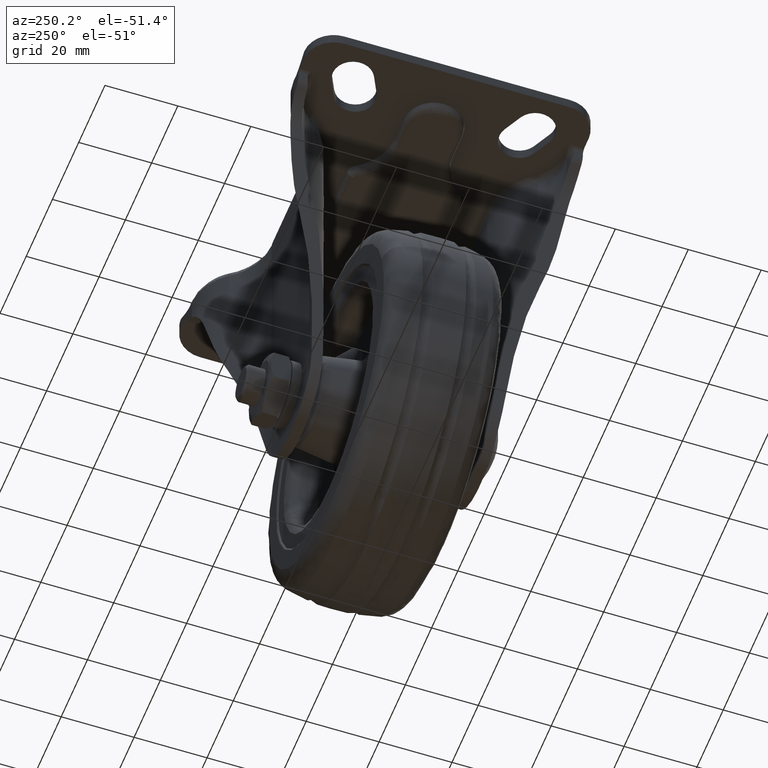
[diagram: clean part render]
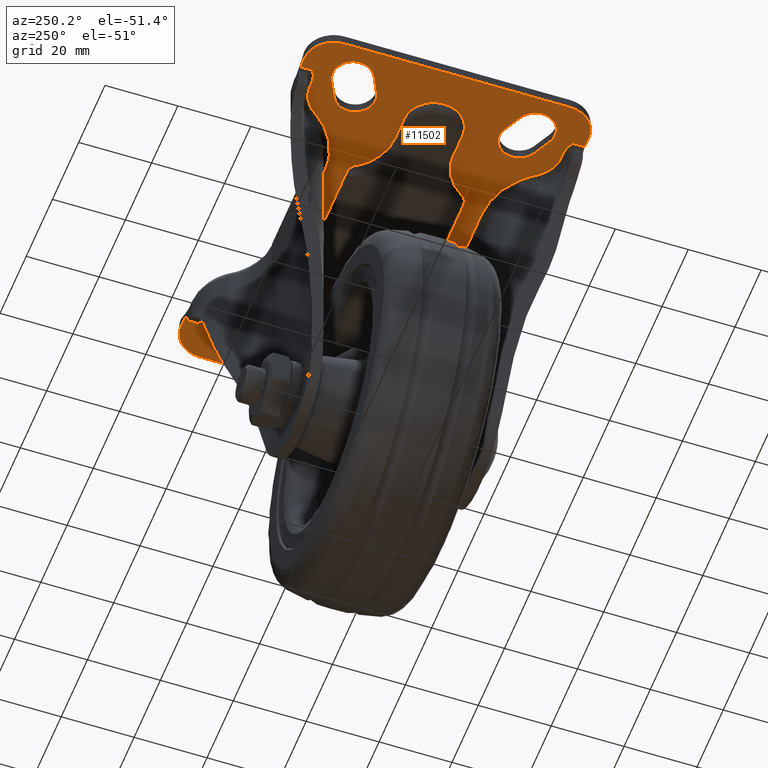
[diagram: same view with one face highlighted and labeled with its STEP entity id]
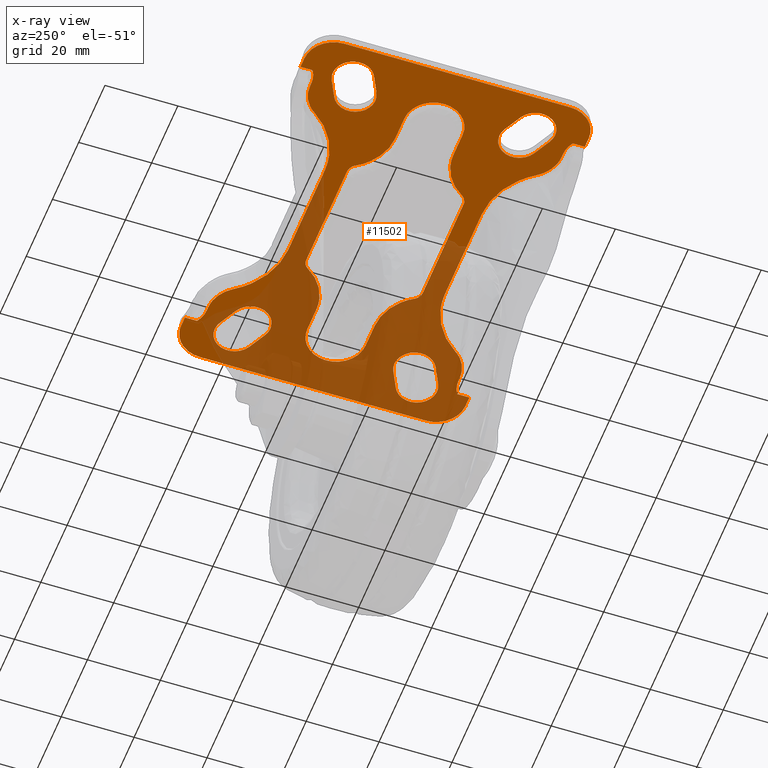
[diagram: x-ray of the same camera — body ghosted, the highlighted face saturated]
A machine part, auxiliary view. The second image highlights one B-rep face of the part: STEP entity #11502.
The next image is the same camera in x-ray: the body ghosted, the highlighted face saturated — about 46% of this face is hidden behind the body in this view.
In plain terms, the highlighted face is a freeform B-spline surface patch.
Its self-contained STEP definition (entity closure, byte-faithful):
#7823=CARTESIAN_POINT('',(-44.0,-35.685922774422302,79.000007999999895));
#7824=VERTEX_POINT('',#7823);
#7864=CARTESIAN_POINT('',(-44.0,-39.0,79.000007999999895));
#7865=VERTEX_POINT('',#7864);
#7879=CARTESIAN_POINT('',(-44.0,-35.685922774422302,79.000007999999895));
#7880=CARTESIAN_POINT('',(-44.0,-39.0,79.000007999999895));
#7881=QUASI_UNIFORM_CURVE('',1,(#7879,#7880),.UNSPECIFIED.,.F.,.U.);
#7882=EDGE_CURVE('',#7824,#7865,#7881,.T.);
#7904=CARTESIAN_POINT('',(-39.631189465921103,-34.499999999999403,79.000007999999895));
#7905=VERTEX_POINT('',#7904);
#7938=CARTESIAN_POINT('',(-39.631189465921103,-34.499999999999389,79.000007999999895));
#7939=CARTESIAN_POINT('',(-42.003095846402069,-34.402227675689481,79.000007999999895));
#7940=CARTESIAN_POINT('',(-43.999999999999993,-35.685922774422323,79.000007999999895));
#7948=(BOUNDED_CURVE()B_SPLINE_CURVE(2,(#7938,#7939,#7940),.UNSPECIFIED.,.F.,.U.)CURVE()GEOMETRIC_REPRESENTATION_ITEM()QUASI_UNIFORM_CURVE()RATIONAL_B_SPLINE_CURVE((1.0,0.953467092188285,1.0))REPRESENTATION_ITEM(''));
#7949=EDGE_CURVE('',#7905,#7824,#7948,.T.);
#7968=CARTESIAN_POINT('',(-38.718417455751897,-34.499999999999403,79.000007999999895));
#7969=VERTEX_POINT('',#7968);
#7985=CARTESIAN_POINT('',(-38.718417455751897,-34.499999999999403,79.000007999999895));
#7986=CARTESIAN_POINT('',(-39.631189465921103,-34.499999999999403,79.000007999999895));
#7987=QUASI_UNIFORM_CURVE('',1,(#7985,#7986),.UNSPECIFIED.,.F.,.U.);
#7988=EDGE_CURVE('',#7969,#7905,#7987,.T.);
#8010=CARTESIAN_POINT('',(-30.890916410544801,-30.383333403596801,79.000007999999895));
#8011=VERTEX_POINT('',#8010);
#8027=CARTESIAN_POINT('',(-30.890916410544801,-30.383333403596801,79.000007999999895));
#8028=CARTESIAN_POINT('',(-33.722140164270542,-34.500001817461929,79.000007999999895));
#8029=CARTESIAN_POINT('',(-38.718417455751897,-34.499999999999382,79.000007999999895));
#8037=(BOUNDED_CURVE()B_SPLINE_CURVE(2,(#8027,#8028,#8029),.UNSPECIFIED.,.F.,.U.)CURVE()GEOMETRIC_REPRESENTATION_ITEM()QUASI_UNIFORM_CURVE()RATIONAL_B_SPLINE_CURVE((1.0,0.885061123203106,1.0))REPRESENTATION_ITEM(''));
#8038=EDGE_CURVE('',#8011,#7969,#8037,.T.);
#8060=CARTESIAN_POINT('',(-13.999993559735101,-21.500000000000000,79.000007999999895));
#8061=VERTEX_POINT('',#8060);
#8077=CARTESIAN_POINT('',(-13.999993559735101,-21.500000000000000,79.000007999999895));
#8078=CARTESIAN_POINT('',(-24.781433700860166,-21.499996612911719,79.000007999999895));
#8079=CARTESIAN_POINT('',(-30.890916410544769,-30.383333403596819,79.000007999999895));
#8087=(BOUNDED_CURVE()B_SPLINE_CURVE(2,(#8077,#8078,#8079),.UNSPECIFIED.,.F.,.U.)CURVE()GEOMETRIC_REPRESENTATION_ITEM()QUASI_UNIFORM_CURVE()RATIONAL_B_SPLINE_CURVE((1.0,0.885061129072033,1.0))REPRESENTATION_ITEM(''));
#8088=EDGE_CURVE('',#8061,#8011,#8087,.T.);
#8107=CARTESIAN_POINT('',(13.999997921514900,-21.500000000000000,79.000007999999895));
#8108=VERTEX_POINT('',#8107);
#8124=CARTESIAN_POINT('',(13.999997921514900,-21.500000000000000,79.000007999999895));
#8125=CARTESIAN_POINT('',(-13.999993559735101,-21.500000000000000,79.000007999999895));
#8126=QUASI_UNIFORM_CURVE('',1,(#8124,#8125),.UNSPECIFIED.,.F.,.U.);
#8127=EDGE_CURVE('',#8108,#8061,#8126,.T.);
#8149=CARTESIAN_POINT('',(30.890915999197752,-30.383333079741298,79.000007999999895));
#8150=VERTEX_POINT('',#8149);
#8166=CARTESIAN_POINT('',(30.890915999197752,-30.383333079741298,79.000007999999895));
#8167=CARTESIAN_POINT('',(24.781434959416973,-21.499998906875408,79.000007999999880));
#8168=CARTESIAN_POINT('',(13.999997921514900,-21.500000000000110,79.000007999999895));
#8176=(BOUNDED_CURVE()B_SPLINE_CURVE(2,(#8166,#8167,#8168),.UNSPECIFIED.,.F.,.U.)CURVE()GEOMETRIC_REPRESENTATION_ITEM()QUASI_UNIFORM_CURVE()RATIONAL_B_SPLINE_CURVE((1.0,0.885061184267306,1.0))REPRESENTATION_ITEM(''));
#8177=EDGE_CURVE('',#8150,#8108,#8176,.T.);
#8199=CARTESIAN_POINT('',(38.718417455751897,-34.499999999999353,79.000007999999895));
#8200=VERTEX_POINT('',#8199);
#8214=CARTESIAN_POINT('',(38.718417455751911,-34.499999999999382,79.000007999999895));
#8215=CARTESIAN_POINT('',(33.722139845162062,-34.500001817462099,79.000007999999880));
#8216=CARTESIAN_POINT('',(30.890915999197759,-30.383333079741298,79.000007999999895));
#8224=(BOUNDED_CURVE()B_SPLINE_CURVE(2,(#8214,#8215,#8216),.UNSPECIFIED.,.F.,.U.)CURVE()GEOMETRIC_REPRESENTATION_ITEM()QUASI_UNIFORM_CURVE()RATIONAL_B_SPLINE_CURVE((1.0,0.885061110955324,1.0))REPRESENTATION_ITEM(''));
#8225=EDGE_CURVE('',#8200,#8150,#8224,.T.);
#8244=CARTESIAN_POINT('',(39.631189465921047,-34.499999999999403,79.000007999999895));
#8245=VERTEX_POINT('',#8244);
#8278=CARTESIAN_POINT('',(39.631189465921047,-34.499999999999403,79.000007999999895));
#8279=CARTESIAN_POINT('',(38.718417455751897,-34.499999999999353,79.000007999999895));
#8280=QUASI_UNIFORM_CURVE('',1,(#8278,#8279),.UNSPECIFIED.,.F.,.U.);
#8281=EDGE_CURVE('',#8245,#8200,#8280,.T.);
#8303=CARTESIAN_POINT('',(44.0,-35.685922774422252,79.000007999999895));
#8304=VERTEX_POINT('',#8303);
#8339=CARTESIAN_POINT('',(43.999999999999972,-35.685922774422302,79.000007999999895));
#8340=CARTESIAN_POINT('',(42.003095846402033,-34.402227675689467,79.000007999999895));
#8341=CARTESIAN_POINT('',(39.631189465921047,-34.499999999999389,79.000007999999895));
#8349=(BOUNDED_CURVE()B_SPLINE_CURVE(2,(#8339,#8340,#8341),.UNSPECIFIED.,.F.,.U.)CURVE()GEOMETRIC_REPRESENTATION_ITEM()QUASI_UNIFORM_CURVE()RATIONAL_B_SPLINE_CURVE((1.0,0.953467092188285,1.0))REPRESENTATION_ITEM(''));
#8350=EDGE_CURVE('',#8304,#8245,#8349,.T.);
#8371=CARTESIAN_POINT('',(44.0,-39.0,79.000007999999895));
#8372=VERTEX_POINT('',#8371);
#8392=CARTESIAN_POINT('',(44.0,-39.0,79.000007999999895));
#8393=CARTESIAN_POINT('',(44.0,-35.685922774422252,79.000007999999895));
#8394=QUASI_UNIFORM_CURVE('',1,(#8392,#8393),.UNSPECIFIED.,.F.,.U.);
#8395=EDGE_CURVE('',#8372,#8304,#8394,.T.);
#8417=CARTESIAN_POINT('',(30.890919792992101,30.383338321759300,79.000007999999895));
#8418=VERTEX_POINT('',#8417);
#8449=CARTESIAN_POINT('',(38.718417455751997,34.499999999999403,79.000007999999895));
#8450=VERTEX_POINT('',#8449);
#8464=CARTESIAN_POINT('',(30.890919792992101,30.383338321759300,79.000007999999895));
#8465=CARTESIAN_POINT('',(33.722143974287299,34.500001817460642,79.000007999999895));
#8466=CARTESIAN_POINT('',(38.718417455751997,34.499999999999382,79.000007999999895));
#8474=(BOUNDED_CURVE()B_SPLINE_CURVE(2,(#8464,#8465,#8466),.UNSPECIFIED.,.F.,.U.)CURVE()GEOMETRIC_REPRESENTATION_ITEM()QUASI_UNIFORM_CURVE()RATIONAL_B_SPLINE_CURVE((1.0,0.885061269436290,1.0))REPRESENTATION_ITEM(''));
#8475=EDGE_CURVE('',#8418,#8450,#8474,.T.);
#8497=CARTESIAN_POINT('',(13.999997757423980,21.500000000000000,79.000007999999895));
#8498=VERTEX_POINT('',#8497);
#8528=CARTESIAN_POINT('',(13.999997757423991,21.500000000000121,79.000007999999895));
#8529=CARTESIAN_POINT('',(24.781439029190498,21.499998820575644,79.000007999999895));
#8530=CARTESIAN_POINT('',(30.890919792992129,30.383338321759279,79.000007999999895));
#8538=(BOUNDED_CURVE()B_SPLINE_CURVE(2,(#8528,#8529,#8530),.UNSPECIFIED.,.F.,.U.)CURVE()GEOMETRIC_REPRESENTATION_ITEM()QUASI_UNIFORM_CURVE()RATIONAL_B_SPLINE_CURVE((1.0,0.885061108961963,1.0))REPRESENTATION_ITEM(''));
#8539=EDGE_CURVE('',#8498,#8418,#8538,.T.);
#8558=CARTESIAN_POINT('',(-14.0,21.500000000000000,79.000007999999895));
#8559=VERTEX_POINT('',#8558);
#8581=CARTESIAN_POINT('',(-14.0,21.500000000000000,79.000007999999895));
#8582=CARTESIAN_POINT('',(13.999997757423980,21.500000000000000,79.000007999999895));
#8583=QUASI_UNIFORM_CURVE('',1,(#8581,#8582),.UNSPECIFIED.,.F.,.U.);
#8584=EDGE_CURVE('',#8559,#8498,#8583,.T.);
#8606=CARTESIAN_POINT('',(-30.890919648683049,30.383338386178199,79.000007999999895));
#8607=VERTEX_POINT('',#8606);
#8637=CARTESIAN_POINT('',(-30.890919648683049,30.383338386178199,79.000007999999895));
#8638=CARTESIAN_POINT('',(-24.781439822017358,21.500000000000004,79.000007999999895));
#8639=CARTESIAN_POINT('',(-14.0,21.500000000000000,79.000007999999895));
#8647=(BOUNDED_CURVE()B_SPLINE_CURVE(2,(#8637,#8638,#8639),.UNSPECIFIED.,.F.,.U.)CURVE()GEOMETRIC_REPRESENTATION_ITEM()QUASI_UNIFORM_CURVE()RATIONAL_B_SPLINE_CURVE((1.0,0.885061134747831,1.0))REPRESENTATION_ITEM(''));
#8648=EDGE_CURVE('',#8607,#8559,#8647,.T.);
#8670=CARTESIAN_POINT('',(-38.718411015487099,34.499999999999403,79.000007999999895));
#8671=VERTEX_POINT('',#8670);
#8699=CARTESIAN_POINT('',(-38.718411015487099,34.499999999999531,79.000007999999895));
#8700=CARTESIAN_POINT('',(-33.722141626510869,34.499998430375229,79.000007999999895));
#8701=CARTESIAN_POINT('',(-30.890919648683049,30.383338386178199,79.000007999999895));
#8709=(BOUNDED_CURVE()B_SPLINE_CURVE(2,(#8699,#8700,#8701),.UNSPECIFIED.,.F.,.U.)CURVE()GEOMETRIC_REPRESENTATION_ITEM()QUASI_UNIFORM_CURVE()RATIONAL_B_SPLINE_CURVE((1.0,0.885061426511052,1.0))REPRESENTATION_ITEM(''));
#8710=EDGE_CURVE('',#8671,#8607,#8709,.T.);
#8729=CARTESIAN_POINT('',(-39.631189465921047,34.499999999999403,79.000007999999895));
#8730=VERTEX_POINT('',#8729);
#8763=CARTESIAN_POINT('',(-39.631189465921047,34.499999999999403,79.000007999999895));
#8764=CARTESIAN_POINT('',(-38.718411015487099,34.499999999999403,79.000007999999895));
#8765=QUASI_UNIFORM_CURVE('',1,(#8763,#8764),.UNSPECIFIED.,.F.,.U.);
#8766=EDGE_CURVE('',#8730,#8671,#8765,.T.);
#8788=CARTESIAN_POINT('',(-44.0,35.685922774422302,79.000007999999895));
#8789=VERTEX_POINT('',#8788);
#8824=CARTESIAN_POINT('',(-43.999999999999993,35.685922774422323,79.000007999999895));
#8825=CARTESIAN_POINT('',(-42.003095846402047,34.402227675689467,79.000007999999895));
#8826=CARTESIAN_POINT('',(-39.631189465921047,34.499999999999389,79.000007999999895));
#8834=(BOUNDED_CURVE()B_SPLINE_CURVE(2,(#8824,#8825,#8826),.UNSPECIFIED.,.F.,.U.)CURVE()GEOMETRIC_REPRESENTATION_ITEM()QUASI_UNIFORM_CURVE()RATIONAL_B_SPLINE_CURVE((1.0,0.953467092188284,1.0))REPRESENTATION_ITEM(''));
#8835=EDGE_CURVE('',#8789,#8730,#8834,.T.);
#8856=CARTESIAN_POINT('',(-44.0,39.0,79.000007999999895));
#8857=VERTEX_POINT('',#8856);
#8877=CARTESIAN_POINT('',(-44.0,39.0,79.000007999999895));
#8878=CARTESIAN_POINT('',(-44.0,35.685922774422302,79.000007999999895));
#8879=QUASI_UNIFORM_CURVE('',1,(#8877,#8878),.UNSPECIFIED.,.F.,.U.);
#8880=EDGE_CURVE('',#8857,#8789,#8879,.T.);
#8918=CARTESIAN_POINT('',(-15.577794057522199,16.0,79.000007999999809));
#8919=VERTEX_POINT('',#8918);
#8934=CARTESIAN_POINT('',(-18.122891203023201,14.588233395114500,79.000007999999809));
#8935=VERTEX_POINT('',#8934);
#8949=CARTESIAN_POINT('',(-15.577794057522199,15.999999999999851,79.000007999999809));
#8950=CARTESIAN_POINT('',(-17.241896726020453,16.000000522793133,79.000007999999809));
#8951=CARTESIAN_POINT('',(-18.122891203023190,14.588233395114500,79.000007999999809));
#8959=(BOUNDED_CURVE()B_SPLINE_CURVE(2,(#8949,#8950,#8951),.UNSPECIFIED.,.F.,.U.)CURVE()GEOMETRIC_REPRESENTATION_ITEM()QUASI_UNIFORM_CURVE()RATIONAL_B_SPLINE_CURVE((1.0,0.874474375034213,1.0))REPRESENTATION_ITEM(''));
#8960=EDGE_CURVE('',#8919,#8935,#8959,.T.);
#8982=CARTESIAN_POINT('',(-29.999995601770301,8.000000000000799,79.000007999999809));
#8983=VERTEX_POINT('',#8982);
#8997=CARTESIAN_POINT('',(-29.999995601770308,8.000000000000689,79.000007999999809));
#8998=CARTESIAN_POINT('',(-22.234197229226865,8.000002439698189,79.000007999999809));
#8999=CARTESIAN_POINT('',(-18.122891129715981,14.588233349368011,79.000007999999809));
#9007=(BOUNDED_CURVE()B_SPLINE_CURVE(2,(#8997,#8998,#8999),.UNSPECIFIED.,.F.,.U.)CURVE()GEOMETRIC_REPRESENTATION_ITEM()QUASI_UNIFORM_CURVE()RATIONAL_B_SPLINE_CURVE((1.0,0.874474748102609,1.0))REPRESENTATION_ITEM(''));
#9008=EDGE_CURVE('',#8983,#8935,#9007,.T.);
#9029=CARTESIAN_POINT('',(15.577797942477901,16.0,79.000007999999809));
#9030=VERTEX_POINT('',#9029);
#9046=CARTESIAN_POINT('',(15.577797942477901,16.0,79.000007999999809));
#9047=CARTESIAN_POINT('',(-15.577794057522199,16.0,79.000007999999809));
#9048=QUASI_UNIFORM_CURVE('',1,(#9046,#9047),.UNSPECIFIED.,.F.,.U.);
#9049=EDGE_CURVE('',#9030,#8919,#9048,.T.);
#9068=CARTESIAN_POINT('',(-37.0,8.0,79.000007999999809));
#9069=VERTEX_POINT('',#9068);
#9083=CARTESIAN_POINT('',(-29.999995601770301,8.000000000000799,79.000007999999809));
#9084=CARTESIAN_POINT('',(-37.0,8.0,79.000007999999809));
#9085=QUASI_UNIFORM_CURVE('',1,(#9083,#9084),.UNSPECIFIED.,.F.,.U.);
#9086=EDGE_CURVE('',#8983,#9069,#9085,.T.);
#9126=CARTESIAN_POINT('',(18.122888007960299,14.588238351879660,79.000007999999809));
#9127=VERTEX_POINT('',#9126);
#9143=CARTESIAN_POINT('',(18.122888007960299,14.588238351879660,79.000007999999809));
#9144=CARTESIAN_POINT('',(17.241894074320260,15.999999005200424,79.000007999999809));
#9145=CARTESIAN_POINT('',(15.577797942477901,16.0,79.000007999999809));
#9153=(BOUNDED_CURVE()B_SPLINE_CURVE(2,(#9143,#9144,#9145),.UNSPECIFIED.,.F.,.U.)CURVE()GEOMETRIC_REPRESENTATION_ITEM()QUASI_UNIFORM_CURVE()RATIONAL_B_SPLINE_CURVE((1.0,0.874475089740512,1.0))REPRESENTATION_ITEM(''));
#9154=EDGE_CURVE('',#9127,#9030,#9153,.T.);
#9182=CARTESIAN_POINT('',(-36.999999860373698,-8.0,79.000007999999809));
#9183=VERTEX_POINT('',#9182);
#9197=CARTESIAN_POINT('',(-37.0,8.0,79.000007999999809));
#9198=CARTESIAN_POINT('',(-37.654509690654770,8.000179092575106,79.000007999999880));
#9199=CARTESIAN_POINT('',(-38.636150440743883,7.878809001673047,79.000007999999724));
#9200=CARTESIAN_POINT('',(-40.011399989283341,7.443099023216033,79.000007999999923));
#9201=CARTESIAN_POINT('',(-41.310282004363813,6.809347256539757,79.000007999999795));
#9202=CARTESIAN_POINT('',(-42.661970092505463,5.754496766161606,79.000007999999269));
#9203=CARTESIAN_POINT('',(-43.731719170311919,4.417729791744385,79.000008000000847));
#9204=CARTESIAN_POINT('',(-44.382073404527127,3.164002055695347,79.000007999999028));
#9205=CARTESIAN_POINT('',(-44.853785495987282,1.765430061869965,79.000008000000037));
#9206=CARTESIAN_POINT('',(-45.089088730337210,0.033820359845522,79.000008000000108));
#9207=CARTESIAN_POINT('',(-44.866724909304708,-1.768855590240380,79.000007999999838));
#9208=CARTESIAN_POINT('',(-44.312145765353698,-3.348642487646395,79.000007999999170));
#9209=CARTESIAN_POINT('',(-43.485700537939252,-4.807913849921258,79.000008000002353));
#9210=CARTESIAN_POINT('',(-42.317051870380190,-6.066086490980329,79.000008000000022));
#9211=CARTESIAN_POINT('',(-41.070932865176196,-6.920648508330315,79.000007999999525));
#9212=CARTESIAN_POINT('',(-39.951291443787881,-7.467162863314860,79.000007999999767));
#9213=CARTESIAN_POINT('',(-38.636192272855943,-7.883813158852026,79.000008000000292));
#9214=CARTESIAN_POINT('',(-37.589041295374741,-8.000103069979890,79.000007999998303));
#9215=CARTESIAN_POINT('',(-36.999999860373698,-8.0,79.000007999999809));
#9216=B_SPLINE_CURVE_WITH_KNOTS('',3,(#9197,#9198,#9199,#9200,#9201,#9202,#9203,#9204,#9205,#9206,#9207,#9208,#9209,#9210,#9211,#9212,#9213,#9214,#9215),.UNSPECIFIED.,.F.,.U.,(4,1,1,1,1,1,1,1,1,1,1,1,1,1,1,1,4),(0.000000335287336,1.963472023958271,2.945239918960709,4.319721238004622,6.283228272231423,8.050444931841362,9.424833791060138,10.504764406756211,12.468273056361150,14.628135010395360,15.904471424608341,17.475158574776358,19.635052643257950,21.009534171183802,21.991306012470702,23.365782629949440,25.132899065749609),.UNSPECIFIED.);
#9217=EDGE_CURVE('',#9069,#9183,#9216,.T.);
#9241=CARTESIAN_POINT('',(30.0,8.0,79.000007999999809));
#9242=VERTEX_POINT('',#9241);
#9258=CARTESIAN_POINT('',(18.122888007960320,14.588238351879671,79.000007999999809));
#9259=CARTESIAN_POINT('',(22.234194896189095,7.999999999999998,79.000007999999809));
#9260=CARTESIAN_POINT('',(30.0,7.999999999999998,79.000007999999809));
#9268=(BOUNDED_CURVE()B_SPLINE_CURVE(2,(#9258,#9259,#9260),.UNSPECIFIED.,.F.,.U.)CURVE()GEOMETRIC_REPRESENTATION_ITEM()QUASI_UNIFORM_CURVE()RATIONAL_B_SPLINE_CURVE((1.0,0.874474569754407,1.0))REPRESENTATION_ITEM(''));
#9269=EDGE_CURVE('',#9127,#9242,#9268,.T.);
#9288=CARTESIAN_POINT('',(-30.0,-8.0,79.000007999999809));
#9289=VERTEX_POINT('',#9288);
#9303=CARTESIAN_POINT('',(-36.999999860373698,-8.0,79.000007999999809));
#9304=CARTESIAN_POINT('',(-30.0,-8.0,79.000007999999809));
#9305=QUASI_UNIFORM_CURVE('',1,(#9303,#9304),.UNSPECIFIED.,.F.,.U.);
#9306=EDGE_CURVE('',#9183,#9289,#9305,.T.);
#9327=CARTESIAN_POINT('',(36.999999581120854,8.0,79.000007999999809));
#9328=VERTEX_POINT('',#9327);
#9344=CARTESIAN_POINT('',(36.999999581120854,8.0,79.000007999999809));
#9345=CARTESIAN_POINT('',(30.0,8.0,79.000007999999809));
#9346=QUASI_UNIFORM_CURVE('',1,(#9344,#9345),.UNSPECIFIED.,.F.,.U.);
#9347=EDGE_CURVE('',#9328,#9242,#9346,.T.);
#9369=CARTESIAN_POINT('',(-18.122890336434551,-14.588234620575200,79.000007999999809));
#9370=VERTEX_POINT('',#9369);
#9384=CARTESIAN_POINT('',(-18.122890336434541,-14.588234620575200,79.000007999999809));
#9385=CARTESIAN_POINT('',(-22.234197771954879,-7.999999999999998,79.000007999999809));
#9386=CARTESIAN_POINT('',(-30.0,-7.999999999999998,79.000007999999809));
#9394=(BOUNDED_CURVE()B_SPLINE_CURVE(2,(#9384,#9385,#9386),.UNSPECIFIED.,.F.,.U.)CURVE()GEOMETRIC_REPRESENTATION_ITEM()QUASI_UNIFORM_CURVE()RATIONAL_B_SPLINE_CURVE((1.0,0.874474645949229,1.0))REPRESENTATION_ITEM(''));
#9395=EDGE_CURVE('',#9370,#9289,#9394,.T.);
#9425=CARTESIAN_POINT('',(37.0,-8.0,79.000007999999809));
#9426=VERTEX_POINT('',#9425);
#9442=CARTESIAN_POINT('',(37.0,-8.0,79.000007999999809));
#9443=CARTESIAN_POINT('',(37.654499328602093,-8.000152502047692,79.000007999999838));
#9444=CARTESIAN_POINT('',(38.963427683052693,-7.838497579704610,79.000007999999610));
#9445=CARTESIAN_POINT('',(40.716938326338543,-7.162194072290951,79.000007999999937));
#9446=CARTESIAN_POINT('',(42.079150486779390,-6.239651782399181,79.000007999999653));
#9447=CARTESIAN_POINT('',(43.247002512620533,-5.086153330507353,79.000008000000463));
#9448=CARTESIAN_POINT('',(44.089626498120353,-3.825116298680145,79.000007999998573));
#9449=CARTESIAN_POINT('',(44.708409340116440,-2.304722762135641,79.000007999999823));
#9450=CARTESIAN_POINT('',(44.986329974025892,-0.951015540013599,79.000008000000051));
#9451=CARTESIAN_POINT('',(45.023347617997167,0.557982297653972,79.000007999999781));
#9452=CARTESIAN_POINT('',(44.767137850759013,2.216391376463488,79.000007999999411));
#9453=CARTESIAN_POINT('',(44.110015118761012,3.802894458356516,79.000008000000804));
#9454=CARTESIAN_POINT('',(43.154163831113380,5.177564708724367,79.000007999996683));
#9455=CARTESIAN_POINT('',(41.991679728974482,6.340319032339264,79.000008000001316));
#9456=CARTESIAN_POINT('',(40.564417586860230,7.231883476708259,79.000007999999241));
#9457=CARTESIAN_POINT('',(38.832479119625731,7.851450054869402,79.000008000000207));
#9458=CARTESIAN_POINT('',(37.687229807852702,8.000201787004775,79.000007999999426));
#9459=CARTESIAN_POINT('',(36.999999581120854,8.0,79.000007999999809));
#9460=B_SPLINE_CURVE_WITH_KNOTS('',3,(#9442,#9443,#9444,#9445,#9446,#9447,#9448,#9449,#9450,#9451,#9452,#9453,#9454,#9455,#9456,#9457,#9458,#9459),.UNSPECIFIED.,.F.,.U.,(4,1,1,1,1,1,1,1,1,1,1,1,1,1,1,4),(0.000000335226513,1.963472045716046,3.927012567125480,5.596009358934087,6.872323848138947,8.835721266733525,10.112046980319329,11.781033971454169,12.959155231440160,14.628135172907969,16.787939261668409,18.064260652204361,19.635052861415740,21.696775146630799,23.071255582005261,25.132899345007871),.UNSPECIFIED.);
#9461=EDGE_CURVE('',#9426,#9328,#9460,.T.);
#9499=CARTESIAN_POINT('',(-15.577794057522199,-16.0,79.000007999999809));
#9500=VERTEX_POINT('',#9499);
#9514=CARTESIAN_POINT('',(-18.122890336434551,-14.588234620575200,79.000007999999809));
#9515=CARTESIAN_POINT('',(-17.241895746283742,-16.000000522792817,79.000007999999809));
#9516=CARTESIAN_POINT('',(-15.577794057522199,-15.999999999999851,79.000007999999809));
#9524=(BOUNDED_CURVE()B_SPLINE_CURVE(2,(#9514,#9515,#9516),.UNSPECIFIED.,.F.,.U.)CURVE()GEOMETRIC_REPRESENTATION_ITEM()QUASI_UNIFORM_CURVE()RATIONAL_B_SPLINE_CURVE((1.0,0.874474496174393,1.0))REPRESENTATION_ITEM(''));
#9525=EDGE_CURVE('',#9370,#9500,#9524,.T.);
#9546=CARTESIAN_POINT('',(29.999990959194399,-8.000000000002920,79.000007999999809));
#9547=VERTEX_POINT('',#9546);
#9562=CARTESIAN_POINT('',(29.999990959194399,-8.000000000002920,79.000007999999809));
#9563=CARTESIAN_POINT('',(37.0,-8.0,79.000007999999809));
#9564=QUASI_UNIFORM_CURVE('',1,(#9562,#9563),.UNSPECIFIED.,.F.,.U.);
#9565=EDGE_CURVE('',#9547,#9426,#9564,.T.);
#9584=CARTESIAN_POINT('',(15.577797000000100,-16.0,79.000007999999809));
#9585=VERTEX_POINT('',#9584);
#9599=CARTESIAN_POINT('',(-15.577794057522199,-16.0,79.000007999999809));
#9600=CARTESIAN_POINT('',(15.577797000000100,-16.0,79.000007999999809));
#9601=QUASI_UNIFORM_CURVE('',1,(#9599,#9600),.UNSPECIFIED.,.F.,.U.);
#9602=EDGE_CURVE('',#9500,#9585,#9601,.T.);
#9626=CARTESIAN_POINT('',(18.122894200939250,-14.588231795983059,79.000007999999809));
#9627=VERTEX_POINT('',#9626);
#9641=CARTESIAN_POINT('',(29.999990959194399,-8.000000000002920,79.000007999999809));
#9642=CARTESIAN_POINT('',(22.234198303335127,-8.000005486940749,79.000007999999795));
#9643=CARTESIAN_POINT('',(18.122894200939250,-14.588231795983059,79.000007999999809));
#9651=(BOUNDED_CURVE()B_SPLINE_CURVE(2,(#9641,#9642,#9643),.UNSPECIFIED.,.F.,.U.)CURVE()GEOMETRIC_REPRESENTATION_ITEM()QUASI_UNIFORM_CURVE()RATIONAL_B_SPLINE_CURVE((1.0,0.874474879528344,1.0))REPRESENTATION_ITEM(''));
#9652=EDGE_CURVE('',#9547,#9627,#9651,.T.);
#9693=CARTESIAN_POINT('',(15.577797000000100,-16.0,79.000007999999809));
#9694=CARTESIAN_POINT('',(17.241900284734339,-15.999999999999996,79.000007999999809));
#9695=CARTESIAN_POINT('',(18.122894200939271,-14.588231795983070,79.000007999999809));
#9703=(BOUNDED_CURVE()B_SPLINE_CURVE(2,(#9693,#9694,#9695),.UNSPECIFIED.,.F.,.U.)CURVE()GEOMETRIC_REPRESENTATION_ITEM()QUASI_UNIFORM_CURVE()RATIONAL_B_SPLINE_CURVE((1.0,0.874474298839315,1.0))REPRESENTATION_ITEM(''));
#9704=EDGE_CURVE('',#9585,#9627,#9703,.T.);
#10961=CARTESIAN_POINT('',(47.0,-39.0,79.000007999999809));
#10962=VERTEX_POINT('',#10961);
#10988=CARTESIAN_POINT('',(44.0,-39.0,79.000007999999895));
#10989=CARTESIAN_POINT('',(47.0,-39.0,79.000007999999809));
#10990=QUASI_UNIFORM_CURVE('',1,(#10988,#10989),.UNSPECIFIED.,.F.,.U.);
#10991=EDGE_CURVE('',#8372,#10962,#10990,.T.);
#11088=CARTESIAN_POINT('',(-60.494499786798663,42.896099848820867,79.000007999999895));
#11089=CARTESIAN_POINT('',(60.494502737228572,42.896099848820867,79.000007999999895));
#11090=CARTESIAN_POINT('',(-60.494499786798663,-42.896101940943893,79.000007999999895));
#11091=CARTESIAN_POINT('',(60.494502737228572,-42.896101940943893,79.000007999999895));
#11092=B_SPLINE_SURFACE_WITH_KNOTS('',1,1,((#11088,#11090),(#11089,#11091)),.UNSPECIFIED.,.F.,.F.,.U.,(2,2),(2,2),(0.0,120.989002524027200),(0.0,85.792201789764761),.UNSPECIFIED.);
#11093=CARTESIAN_POINT('',(39.631189465921103,34.499999999999403,79.000007999999895));
#11094=VERTEX_POINT('',#11093);
#11095=CARTESIAN_POINT('',(44.0,35.685922774422252,79.000007999999895));
#11096=VERTEX_POINT('',#11095);
#11097=CARTESIAN_POINT('',(39.631189465921103,34.499999999999389,79.000007999999895));
#11098=CARTESIAN_POINT('',(42.003095846402054,34.402227675689481,79.000007999999895));
#11099=CARTESIAN_POINT('',(43.999999999999957,35.685922774422302,79.000007999999895));
#11107=(BOUNDED_CURVE()B_SPLINE_CURVE(2,(#11097,#11098,#11099),.UNSPECIFIED.,.F.,.U.)CURVE()GEOMETRIC_REPRESENTATION_ITEM()QUASI_UNIFORM_CURVE()RATIONAL_B_SPLINE_CURVE((1.0,0.953467092188286,1.0))REPRESENTATION_ITEM(''));
#11108=EDGE_CURVE('',#11094,#11096,#11107,.T.);
#11109=ORIENTED_EDGE('',*,*,#11108,.T.);
#11110=CARTESIAN_POINT('',(44.0,39.0,79.000007999999895));
#11111=VERTEX_POINT('',#11110);
#11112=CARTESIAN_POINT('',(44.0,35.685922774422252,79.000007999999895));
#11113=CARTESIAN_POINT('',(44.0,39.0,79.000007999999895));
#11114=QUASI_UNIFORM_CURVE('',1,(#11112,#11113),.UNSPECIFIED.,.F.,.U.);
#11115=EDGE_CURVE('',#11096,#11111,#11114,.T.);
#11116=ORIENTED_EDGE('',*,*,#11115,.T.);
#11117=CARTESIAN_POINT('',(47.000002513273998,39.0,79.000007999999809));
#11118=VERTEX_POINT('',#11117);
#11119=CARTESIAN_POINT('',(47.000002513273998,39.0,79.000007999999809));
#11120=CARTESIAN_POINT('',(44.0,39.0,79.000007999999895));
#11121=QUASI_UNIFORM_CURVE('',1,(#11119,#11120),.UNSPECIFIED.,.F.,.U.);
#11122=EDGE_CURVE('',#11118,#11111,#11121,.T.);
#11123=ORIENTED_EDGE('',*,*,#11122,.F.);
#11124=CARTESIAN_POINT('',(55.0,31.0,79.000007999999809));
#11125=VERTEX_POINT('',#11124);
#11126=CARTESIAN_POINT('',(55.0,31.0,79.000007999999809));
#11127=CARTESIAN_POINT('',(55.0,38.999997486726407,79.000007999999809));
#11128=CARTESIAN_POINT('',(47.000002513273998,38.999999999999602,79.000007999999809));
#11136=(BOUNDED_CURVE()B_SPLINE_CURVE(2,(#11126,#11127,#11128),.UNSPECIFIED.,.F.,.U.)CURVE()GEOMETRIC_REPRESENTATION_ITEM()QUASI_UNIFORM_CURVE()RATIONAL_B_SPLINE_CURVE((1.0,0.707106892258607,1.0))REPRESENTATION_ITEM(''));
#11137=EDGE_CURVE('',#11125,#11118,#11136,.T.);
#11138=ORIENTED_EDGE('',*,*,#11137,.F.);
#11139=CARTESIAN_POINT('',(54.999999999996199,-30.999992320551200,79.000007999999809));
#11140=VERTEX_POINT('',#11139);
#11141=CARTESIAN_POINT('',(54.999999999996199,-30.999992320551200,79.000007999999809));
#11142=CARTESIAN_POINT('',(55.0,31.0,79.000007999999809));
#11143=QUASI_UNIFORM_CURVE('',1,(#11141,#11142),.UNSPECIFIED.,.F.,.U.);
#11144=EDGE_CURVE('',#11140,#11125,#11143,.T.);
#11145=ORIENTED_EDGE('',*,*,#11144,.F.);
#11146=CARTESIAN_POINT('',(47.0,-39.0,79.000007999999809));
#11147=CARTESIAN_POINT('',(47.458149175456199,-39.000037727036378,79.000007999999951));
#11148=CARTESIAN_POINT('',(48.374427410281122,-38.921052328930699,79.000007999999610));
#11149=CARTESIAN_POINT('',(49.930803105024623,-38.511056047321951,79.000007999999880));
#11150=CARTESIAN_POINT('',(51.517472162911432,-37.700188693470459,79.000007999999866));
#11151=CARTESIAN_POINT('',(52.907095245494837,-36.486382748326413,79.000007999999852));
#11152=CARTESIAN_POINT('',(53.847273932554373,-35.218564927291077,79.000007999999710));
#11153=CARTESIAN_POINT('',(54.503410253647480,-33.894929501000050,79.000008000000363));
#11154=CARTESIAN_POINT('',(54.906353872673570,-32.505328052862183,79.000007999998346));
#11155=CARTESIAN_POINT('',(55.000050265896853,-31.490864769228331,79.000008000001614));
#11156=CARTESIAN_POINT('',(54.999999999996199,-30.999992320551200,79.000007999999809));
#11157=B_SPLINE_CURVE_WITH_KNOTS('',3,(#11146,#11147,#11148,#11149,#11150,#11151,#11152,#11153,#11154,#11155,#11156),.UNSPECIFIED.,.F.,.U.,(4,1,1,1,1,1,1,1,4),(0.000000140426586,1.374452402414985,2.748911399109907,4.810604670704058,6.675918418853986,8.246715523124554,9.523019581770384,11.093837628788011,12.566457142600671),.UNSPECIFIED.);
#11158=EDGE_CURVE('',#10962,#11140,#11157,.T.);
#11159=ORIENTED_EDGE('',*,*,#11158,.F.);
#11160=ORIENTED_EDGE('',*,*,#10991,.F.);
#11161=ORIENTED_EDGE('',*,*,#8395,.T.);
#11162=ORIENTED_EDGE('',*,*,#8350,.T.);
#11163=ORIENTED_EDGE('',*,*,#8281,.T.);
#11164=ORIENTED_EDGE('',*,*,#8225,.T.);
#11165=ORIENTED_EDGE('',*,*,#8177,.T.);
#11166=ORIENTED_EDGE('',*,*,#8127,.T.);
#11167=ORIENTED_EDGE('',*,*,#8088,.T.);
#11168=ORIENTED_EDGE('',*,*,#8038,.T.);
#11169=ORIENTED_EDGE('',*,*,#7988,.T.);
#11170=ORIENTED_EDGE('',*,*,#7949,.T.);
#11171=ORIENTED_EDGE('',*,*,#7882,.T.);
#11172=CARTESIAN_POINT('',(-46.999996090462403,-38.999999999998948,79.000007999999809));
#11173=VERTEX_POINT('',#11172);
#11174=CARTESIAN_POINT('',(-46.999996090462403,-38.999999999998948,79.000007999999809));
#11175=CARTESIAN_POINT('',(-44.0,-39.0,79.000007999999895));
#11176=QUASI_UNIFORM_CURVE('',1,(#11174,#11175),.UNSPECIFIED.,.F.,.U.);
#11177=EDGE_CURVE('',#11173,#7865,#11176,.T.);
#11178=ORIENTED_EDGE('',*,*,#11177,.F.);
#11179=CARTESIAN_POINT('',(-55.0,-31.0,79.000007999999809));
#11180=VERTEX_POINT('',#11179);
#11181=CARTESIAN_POINT('',(-55.0,-31.0,79.000007999999809));
#11182=CARTESIAN_POINT('',(-55.000076889008326,-31.589043396101900,79.000007999999738));
#11183=CARTESIAN_POINT('',(-54.854909954004540,-32.898063224236118,79.000008000000008));
#11184=CARTESIAN_POINT('',(-54.199139750524893,-34.662473416921131,79.000007999999781));
#11185=CARTESIAN_POINT('',(-53.147451985741192,-36.215416144945493,79.000008000000051));
#11186=CARTESIAN_POINT('',(-51.931333480941959,-37.373292160772422,79.000007999999283));
#11187=CARTESIAN_POINT('',(-50.643519181619823,-38.166692570192083,79.000008000000321));
#11188=CARTESIAN_POINT('',(-49.028729736010433,-38.812592377009999,79.000007999999468));
#11189=CARTESIAN_POINT('',(-47.818179567542948,-39.000398699717358,79.000008000000122));
#11190=CARTESIAN_POINT('',(-46.999996090462403,-38.999999999998948,79.000007999999809));
#11191=B_SPLINE_CURVE_WITH_KNOTS('',3,(#11181,#11182,#11183,#11184,#11185,#11186,#11187,#11188,#11189,#11190),.UNSPECIFIED.,.F.,.U.,(4,1,1,1,1,1,1,4),(0.000000140432959,1.767149293588124,3.927030841895029,5.596020358392354,7.363153408627799,8.933953837865181,10.112069600296930,12.566453372618479),.UNSPECIFIED.);
#11192=EDGE_CURVE('',#11180,#11173,#11191,.T.);
#11193=ORIENTED_EDGE('',*,*,#11192,.F.);
#11194=CARTESIAN_POINT('',(-55.0,30.999997347099701,79.000007999999809));
#11195=VERTEX_POINT('',#11194);
#11196=CARTESIAN_POINT('',(-55.0,30.999997347099701,79.000007999999809));
#11197=CARTESIAN_POINT('',(-55.0,-31.0,79.000007999999809));
#11198=QUASI_UNIFORM_CURVE('',1,(#11196,#11197),.UNSPECIFIED.,.F.,.U.);
#11199=EDGE_CURVE('',#11195,#11180,#11198,.T.);
#11200=ORIENTED_EDGE('',*,*,#11199,.F.);
#11201=CARTESIAN_POINT('',(-47.0,39.0,79.000007999999809));
#11202=VERTEX_POINT('',#11201);
#11203=CARTESIAN_POINT('',(-47.0,39.0,79.000007999999809));
#11204=CARTESIAN_POINT('',(-47.458144834683402,39.000014707720872,79.000007999999809));
#11205=CARTESIAN_POINT('',(-48.538087258930773,38.907088537036223,79.000007999999951));
#11206=CARTESIAN_POINT('',(-50.085850802499529,38.447942805186621,79.000007999999752));
#11207=CARTESIAN_POINT('',(-51.641502837782973,37.591712802490882,79.000007999999937));
#11208=CARTESIAN_POINT('',(-52.782989344890602,36.594750407924288,79.000008000000079));
#11209=CARTESIAN_POINT('',(-53.759198491984463,35.359524905580493,79.000007999999539));
#11210=CARTESIAN_POINT('',(-54.457677767656953,34.052875751888379,79.000007999999951));
#11211=CARTESIAN_POINT('',(-54.906363041956972,32.505330342574993,79.000008000001657));
#11212=CARTESIAN_POINT('',(-55.000043803129458,31.490868860486231,79.000007999997194));
#11213=CARTESIAN_POINT('',(-55.0,30.999997347099701,79.000007999999809));
#11214=B_SPLINE_CURVE_WITH_KNOTS('',3,(#11203,#11204,#11205,#11206,#11207,#11208,#11209,#11210,#11211,#11212,#11213),.UNSPECIFIED.,.F.,.U.,(4,1,1,1,1,1,1,1,4),(0.000000140450316,1.374451852662157,3.239790382298471,4.810602746454591,6.675915748465179,7.755845049138945,9.523015772521305,11.093833191201419,12.566452115957350),.UNSPECIFIED.);
#11215=EDGE_CURVE('',#11202,#11195,#11214,.T.);
#11216=ORIENTED_EDGE('',*,*,#11215,.F.);
#11217=CARTESIAN_POINT('',(-44.0,39.0,79.000007999999895));
#11218=CARTESIAN_POINT('',(-47.0,39.0,79.000007999999809));
#11219=QUASI_UNIFORM_CURVE('',1,(#11217,#11218),.UNSPECIFIED.,.F.,.U.);
#11220=EDGE_CURVE('',#8857,#11202,#11219,.T.);
#11221=ORIENTED_EDGE('',*,*,#11220,.F.);
#11222=ORIENTED_EDGE('',*,*,#8880,.T.);
#11223=ORIENTED_EDGE('',*,*,#8835,.T.);
#11224=ORIENTED_EDGE('',*,*,#8766,.T.);
#11225=ORIENTED_EDGE('',*,*,#8710,.T.);
#11226=ORIENTED_EDGE('',*,*,#8648,.T.);
#11227=ORIENTED_EDGE('',*,*,#8584,.T.);
#11228=ORIENTED_EDGE('',*,*,#8539,.T.);
#11229=ORIENTED_EDGE('',*,*,#8475,.T.);
#11230=CARTESIAN_POINT('',(38.718417455751997,34.499999999999403,79.000007999999895));
#11231=CARTESIAN_POINT('',(39.631189465921103,34.499999999999403,79.000007999999895));
#11232=QUASI_UNIFORM_CURVE('',1,(#11230,#11231),.UNSPECIFIED.,.F.,.U.);
#11233=EDGE_CURVE('',#8450,#11094,#11232,.T.);
#11234=ORIENTED_EDGE('',*,*,#11233,.T.);
#11235=EDGE_LOOP('',(#11109,#11116,#11123,#11138,#11145,#11159,#11160,#11161,#11162,#11163,#11164,#11165,#11166,#11167,#11168,#11169,#11170,#11171,#11178,#11193,#11200,#11216,#11221,#11222,#11223,#11224,#11225,#11226,#11227,#11228,#11229,#11234));
#11236=FACE_OUTER_BOUND('',#11235,.T.);
#11237=CARTESIAN_POINT('',(-37.540325497530603,27.419349686889749,79.000007999999809));
#11238=VERTEX_POINT('',#11237);
#11239=CARTESIAN_POINT('',(-42.540326613695647,29.919350244972001,79.000007999999809));
#11240=VERTEX_POINT('',#11239);
#11241=CARTESIAN_POINT('',(-37.540325497530603,27.419349686889749,79.000007999999809));
#11242=CARTESIAN_POINT('',(-42.540326613695647,29.919350244972001,79.000007999999809));
#11243=QUASI_UNIFORM_CURVE('',1,(#11241,#11242),.UNSPECIFIED.,.F.,.U.);
#11244=EDGE_CURVE('',#11238,#11240,#11243,.T.);
#11245=ORIENTED_EDGE('',*,*,#11244,.T.);
#11246=CARTESIAN_POINT('',(-47.459675876211001,20.080650999981248,79.000007999999809));
#11247=VERTEX_POINT('',#11246);
#11248=CARTESIAN_POINT('',(-42.540326613695647,29.919350244972001,79.000007999999809));
#11249=CARTESIAN_POINT('',(-42.942739387924888,30.120700448948849,79.000007999999681));
#11250=CARTESIAN_POINT('',(-43.583689637998653,30.347866491691178,79.000008000000321));
#11251=CARTESIAN_POINT('',(-44.585579341014423,30.506332627252782,79.000007999999085));
#11252=CARTESIAN_POINT('',(-45.511928613378601,30.509557620176729,79.000008000000747));
#11253=CARTESIAN_POINT('',(-46.489343766723508,30.324848145982251,79.000007999999823));
#11254=CARTESIAN_POINT('',(-47.438220725901857,29.962583277636998,79.000007999999326));
#11255=CARTESIAN_POINT('',(-48.193243668494922,29.507277618167748,79.000007999999767));
#11256=CARTESIAN_POINT('',(-48.967650839320292,28.852134692006310,79.000008000000634));
#11257=CARTESIAN_POINT('',(-49.631437557693530,28.049024020446559,79.000007999997734));
#11258=CARTESIAN_POINT('',(-50.225427034708012,26.879146664859721,79.000008000001287));
#11259=CARTESIAN_POINT('',(-50.526307984524152,25.597179012835589,79.000007999999525));
#11260=CARTESIAN_POINT('',(-50.498967116564707,24.306273571570490,79.000007999999724));
#11261=CARTESIAN_POINT('',(-50.234789403366257,23.207205606223582,79.000007999999838));
#11262=CARTESIAN_POINT('',(-49.777262652850368,22.199027529979709,79.000007999999866));
#11263=CARTESIAN_POINT('',(-49.178322076438533,21.375111506435520,79.000007999999838));
#11264=CARTESIAN_POINT('',(-48.392040495552777,20.630571671148839,79.000007999999767));
#11265=CARTESIAN_POINT('',(-47.821924365611373,20.261694983286240,79.000007999999880));
#11266=CARTESIAN_POINT('',(-47.459675876211001,20.080650999981248,79.000007999999809));
#11267=B_SPLINE_CURVE_WITH_KNOTS('',3,(#11248,#11249,#11250,#11251,#11252,#11253,#11254,#11255,#11256,#11257,#11258,#11259,#11260,#11261,#11262,#11263,#11264,#11265,#11266),.UNSPECIFIED.,.F.,.U.,(4,1,1,1,1,1,1,1,1,1,1,1,1,1,1,1,4),(0.000000502365257,1.349885745230401,2.024853664696220,3.037295231609431,4.117228354774978,4.994682816327869,6.074648062608075,6.749605353094147,8.032002418267553,9.179323246890521,10.664284251788921,11.946692428087079,13.026647396117450,14.039106529552040,15.254059185136470,16.063966257552519,17.278865227920040),.UNSPECIFIED.);
#11268=EDGE_CURVE('',#11240,#11247,#11267,.T.);
#11269=ORIENTED_EDGE('',*,*,#11268,.T.);
#11270=CARTESIAN_POINT('',(-42.464875844140863,17.583254422591050,79.000007999999809));
#11271=VERTEX_POINT('',#11270);
#11272=CARTESIAN_POINT('',(-47.459675876211001,20.080650999981248,79.000007999999809));
#11273=CARTESIAN_POINT('',(-42.464875844140863,17.583254422591050,79.000007999999809));
#11274=QUASI_UNIFORM_CURVE('',1,(#11272,#11273),.UNSPECIFIED.,.F.,.U.);
#11275=EDGE_CURVE('',#11247,#11271,#11274,.T.);
#11276=ORIENTED_EDGE('',*,*,#11275,.T.);
#11277=CARTESIAN_POINT('',(-42.464875844140863,17.583254422591050,79.000007999999809));
#11278=CARTESIAN_POINT('',(-41.941899034989042,17.320676490024699,79.000007999999724));
#11279=CARTESIAN_POINT('',(-41.028656603144782,17.033666180906259,79.000008000000122));
#11280=CARTESIAN_POINT('',(-39.853992241260890,16.978147801797689,79.000007999999511));
#11281=CARTESIAN_POINT('',(-38.778432579578087,17.099268714867272,79.000007999999966));
#11282=CARTESIAN_POINT('',(-37.718196249328990,17.437349388348391,79.000007999999823));
#11283=CARTESIAN_POINT('',(-36.694594028090442,18.062379275044631,79.000007999999767));
#11284=CARTESIAN_POINT('',(-35.892669793916632,18.792145608043779,79.000007999999895));
#11285=CARTESIAN_POINT('',(-35.147037843231232,19.788743979325549,79.000007999999653));
#11286=CARTESIAN_POINT('',(-34.636093224102488,21.029946817160130,79.000008000000093));
#11287=CARTESIAN_POINT('',(-34.441342666303548,22.488943341046060,79.000007999999639));
#11288=CARTESIAN_POINT('',(-34.595069524054743,23.775399484029059,79.000007999999781));
#11289=CARTESIAN_POINT('',(-35.055169281566087,25.003760116895819,79.000008000001131));
#11290=CARTESIAN_POINT('',(-35.632693453432097,25.898547118188741,79.000007999997166));
#11291=CARTESIAN_POINT('',(-36.459669852315074,26.762686231783629,79.000008000005437));
#11292=CARTESIAN_POINT('',(-37.097386328765772,27.198063231785369,79.000007999990331));
#11293=CARTESIAN_POINT('',(-37.540325497530603,27.419349686889749,79.000007999999809));
#11294=B_SPLINE_CURVE_WITH_KNOTS('',3,(#11277,#11278,#11279,#11280,#11281,#11282,#11283,#11284,#11285,#11286,#11287,#11288,#11289,#11290,#11291,#11292,#11293),.UNSPECIFIED.,.F.,.U.,(4,1,1,1,1,1,1,1,1,1,1,1,1,1,4),(0.000000429554373,1.755446247682727,2.835769079439080,3.510962695504496,4.996360105783356,6.144101863473640,7.089417514474715,8.237232294090216,9.857679727197990,11.073029578097950,12.625919117043210,13.706195636561199,14.989078900736381,15.799317832928351,17.284684936935101),.UNSPECIFIED.);
#11295=EDGE_CURVE('',#11271,#11238,#11294,.T.);
#11296=ORIENTED_EDGE('',*,*,#11295,.T.);
#11297=EDGE_LOOP('',(#11245,#11269,#11276,#11296));
#11298=FACE_BOUND('',#11297,.T.);
#11299=CARTESIAN_POINT('',(-37.544231751437451,-27.421300875718750,79.000007999999809));
#11300=VERTEX_POINT('',#11299);
#11301=CARTESIAN_POINT('',(-42.459676734799402,-17.580651429275601,79.000007999999809));
#11302=VERTEX_POINT('',#11301);
#11303=CARTESIAN_POINT('',(-37.544231751437451,-27.421300875718750,79.000007999999809));
#11304=CARTESIAN_POINT('',(-37.060841543000983,-27.180336281146431,79.000007999999852));
#11305=CARTESIAN_POINT('',(-36.389895005379273,-26.710816859292159,79.000007999999880));
#11306=CARTESIAN_POINT('',(-35.629423029383943,-25.877318852781588,79.000007999999724));
#11307=CARTESIAN_POINT('',(-35.121788200125387,-25.102750787169501,79.000007999999909));
#11308=CARTESIAN_POINT('',(-34.697157264209359,-24.104502229398548,79.000007999999198));
#11309=CARTESIAN_POINT('',(-34.479358438643942,-22.992769063381271,79.000008000000847));
#11310=CARTESIAN_POINT('',(-34.501162931821533,-21.975440247608638,79.000007999998417));
#11311=CARTESIAN_POINT('',(-34.671574971651900,-21.043956655446092,79.000008000000662));
#11312=CARTESIAN_POINT('',(-35.026385090147862,-20.042109087276010,79.000007999998545));
#11313=CARTESIAN_POINT('',(-35.746059444106187,-18.913167046491221,79.000008000000506));
#11314=CARTESIAN_POINT('',(-36.803342158420072,-17.949219580582110,79.000007999999582));
#11315=CARTESIAN_POINT('',(-37.948823022003609,-17.350739915374430,79.000007999999823));
#11316=CARTESIAN_POINT('',(-39.082481244430241,-17.041046640788071,79.000007999999852));
#11317=CARTESIAN_POINT('',(-40.098187155800240,-16.969515325988009,79.000007999999724));
#11318=CARTESIAN_POINT('',(-41.264549264275182,-17.102851483812810,79.000007999999866));
#11319=CARTESIAN_POINT('',(-42.016923355050487,-17.359079309800531,79.000007999999752));
#11320=CARTESIAN_POINT('',(-42.459676734799402,-17.580651429275601,79.000007999999809));
#11321=B_SPLINE_CURVE_WITH_KNOTS('',3,(#11303,#11304,#11305,#11306,#11307,#11308,#11309,#11310,#11311,#11312,#11313,#11314,#11315,#11316,#11317,#11318,#11319,#11320),.UNSPECIFIED.,.F.,.U.,(4,1,1,1,1,1,1,1,1,1,1,1,1,1,1,4),(0.000000429390415,1.620275980271076,2.430444402181806,3.375645623608991,4.388362883476805,5.671099855934225,6.751261249437588,7.426383455509251,8.506590331348203,9.924391203112513,11.409647765269920,12.759863147885961,13.772576364460990,14.920295973596220,15.797994361368749,17.283237048157670),.UNSPECIFIED.);
#11322=EDGE_CURVE('',#11300,#11302,#11321,.T.);
#11323=ORIENTED_EDGE('',*,*,#11322,.T.);
#11324=CARTESIAN_POINT('',(-47.459676734799302,-20.080651429275701,79.000007999999809));
#11325=VERTEX_POINT('',#11324);
#11326=CARTESIAN_POINT('',(-47.459676734799302,-20.080651429275701,79.000007999999809));
#11327=CARTESIAN_POINT('',(-42.459676734799402,-17.580651429275601,79.000007999999809));
#11328=QUASI_UNIFORM_CURVE('',1,(#11326,#11327),.UNSPECIFIED.,.F.,.U.);
#11329=EDGE_CURVE('',#11325,#11302,#11328,.T.);
#11330=ORIENTED_EDGE('',*,*,#11329,.F.);
#11331=CARTESIAN_POINT('',(-42.540325999999801,-29.919347999999900,79.000007999999809));
#11332=VERTEX_POINT('',#11331);
#11333=CARTESIAN_POINT('',(-47.459676734799302,-20.080651429275701,79.000007999999809));
#11334=CARTESIAN_POINT('',(-48.043494897796059,-20.372054285154420,79.000007999999866));
#11335=CARTESIAN_POINT('',(-48.867004206642747,-20.988094451512868,79.000007999999767));
#11336=CARTESIAN_POINT('',(-49.649828686150236,-22.011730991317869,79.000007999999795));
#11337=CARTESIAN_POINT('',(-50.098920616124580,-22.871583441853801,79.000007999999909));
#11338=CARTESIAN_POINT('',(-50.407526020149810,-23.816599017978799,79.000007999999710));
#11339=CARTESIAN_POINT('',(-50.552989121771681,-25.029495169786909,79.000008000000165));
#11340=CARTESIAN_POINT('',(-50.384528582131992,-26.427041587120879,79.000007999999539));
#11341=CARTESIAN_POINT('',(-49.867089816748610,-27.663818547720449,79.000007999999951));
#11342=CARTESIAN_POINT('',(-49.115818754626027,-28.708980355793980,79.000008000000250));
#11343=CARTESIAN_POINT('',(-48.177619021528209,-29.564098005551561,79.000007999999454));
#11344=CARTESIAN_POINT('',(-47.070719195784363,-30.142109331373781,79.000007999999966));
#11345=CARTESIAN_POINT('',(-45.938448636888083,-30.451133833770040,79.000007999999823));
#11346=CARTESIAN_POINT('',(-45.036700287048177,-30.525652181533768,79.000007999999781));
#11347=CARTESIAN_POINT('',(-43.846149103329253,-30.426372829513170,79.000007999999823));
#11348=CARTESIAN_POINT('',(-43.063413619177652,-30.181308143382608,79.000007999999809));
#11349=CARTESIAN_POINT('',(-42.540325999999801,-29.919347999999900,79.000007999999809));
#11350=B_SPLINE_CURVE_WITH_KNOTS('',3,(#11333,#11334,#11335,#11336,#11337,#11338,#11339,#11340,#11341,#11342,#11343,#11344,#11345,#11346,#11347,#11348,#11349),.UNSPECIFIED.,.F.,.U.,(4,1,1,1,1,1,1,1,1,1,1,1,1,1,4),(0.000000502507508,1.957309309252182,3.037295096419483,3.847248575435344,4.859690242505396,6.007118295862972,7.492075118396395,9.044405865338559,9.989327256930908,11.339249302139690,12.824158809994680,13.701618928760110,14.849048894878241,15.523988580579010,17.278864459383438),.UNSPECIFIED.);
#11351=EDGE_CURVE('',#11325,#11332,#11350,.T.);
#11352=ORIENTED_EDGE('',*,*,#11351,.T.);
#11353=CARTESIAN_POINT('',(-37.544231751437451,-27.421300875718750,79.000007999999809));
#11354=CARTESIAN_POINT('',(-42.540325999999801,-29.919347999999900,79.000007999999809));
#11355=QUASI_UNIFORM_CURVE('',1,(#11353,#11354),.UNSPECIFIED.,.F.,.U.);
#11356=EDGE_CURVE('',#11300,#11332,#11355,.T.);
#11357=ORIENTED_EDGE('',*,*,#11356,.F.);
#11358=EDGE_LOOP('',(#11323,#11330,#11352,#11357));
#11359=FACE_BOUND('',#11358,.T.);
#11360=CARTESIAN_POINT('',(42.459675103481352,-17.580650613616200,79.000007999999809));
#11361=VERTEX_POINT('',#11360);
#11362=CARTESIAN_POINT('',(37.544706488569652,-27.421537744722400,79.000007999999809));
#11363=VERTEX_POINT('',#11362);
#11364=CARTESIAN_POINT('',(42.459675103481352,-17.580650613616200,79.000007999999809));
#11365=CARTESIAN_POINT('',(42.157753645676273,-17.429684646306661,79.000007999999710));
#11366=CARTESIAN_POINT('',(41.378614144442757,-17.125944570176468,79.000007999999980));
#11367=CARTESIAN_POINT('',(40.254962009723293,-16.962427140069700,79.000007999999895));
#11368=CARTESIAN_POINT('',(39.128882831476894,-17.041913105018299,79.000007999999724));
#11369=CARTESIAN_POINT('',(38.141548452172927,-17.285785641256101,79.000008000000008));
#11370=CARTESIAN_POINT('',(37.014724748329989,-17.814144904453070,79.000007999999795));
#11371=CARTESIAN_POINT('',(36.010680668267078,-18.632911032896740,79.000007999999383));
#11372=CARTESIAN_POINT('',(35.307011013013437,-19.575968987642291,79.000008000000037));
#11373=CARTESIAN_POINT('',(34.863356119684610,-20.464248130122279,79.000007999999852));
#11374=CARTESIAN_POINT('',(34.598382149943880,-21.328567125540712,79.000007999999696));
#11375=CARTESIAN_POINT('',(34.465365323953733,-22.381292966284121,79.000008000000037));
#11376=CARTESIAN_POINT('',(34.540680347514623,-23.443524911546980,79.000007999998914));
#11377=CARTESIAN_POINT('',(34.877312460732199,-24.616602535559590,79.000008000002481));
#11378=CARTESIAN_POINT('',(35.490308602645037,-25.754477570386889,79.000007999998061));
#11379=CARTESIAN_POINT('',(36.421270268480043,-26.749536826169670,79.000008000000705));
#11380=CARTESIAN_POINT('',(37.182204244690851,-27.240747330593688,79.000008000000051));
#11381=CARTESIAN_POINT('',(37.544706488569652,-27.421537744722400,79.000007999999809));
#11382=B_SPLINE_CURVE_WITH_KNOTS('',3,(#11364,#11365,#11366,#11367,#11368,#11369,#11370,#11371,#11372,#11373,#11374,#11375,#11376,#11377,#11378,#11379,#11380,#11381),.UNSPECIFIED.,.F.,.U.,(4,1,1,1,1,1,1,1,1,1,1,1,1,1,1,4),(0.000000429474426,1.012711936071092,2.498044745895255,3.375748893599043,4.388497136704810,5.536227975262909,7.089040514641408,8.236794259599828,9.046971911248551,10.059713857591300,10.937437431415200,12.220109644462680,13.232854299584559,14.583178863222869,16.068504543440209,17.283765783272749),.UNSPECIFIED.);
#11383=EDGE_CURVE('',#11361,#11363,#11382,.T.);
#11384=ORIENTED_EDGE('',*,*,#11383,.T.);
#11385=CARTESIAN_POINT('',(42.540327987437301,-29.919350931842150,79.000007999999809));
#11386=VERTEX_POINT('',#11385);
#11387=CARTESIAN_POINT('',(42.540327987437301,-29.919350931842150,79.000007999999809));
#11388=CARTESIAN_POINT('',(37.544706488569652,-27.421537744722400,79.000007999999809));
#11389=QUASI_UNIFORM_CURVE('',1,(#11387,#11388),.UNSPECIFIED.,.F.,.U.);
#11390=EDGE_CURVE('',#11386,#11363,#11389,.T.);
#11391=ORIENTED_EDGE('',*,*,#11390,.F.);
#11392=CARTESIAN_POINT('',(47.459677000000198,-20.080649999999999,79.000007999999809));
#11393=VERTEX_POINT('',#11392);
#11394=CARTESIAN_POINT('',(42.540327987437301,-29.919350931842150,79.000007999999809));
#11395=CARTESIAN_POINT('',(42.922610481068411,-30.110588231780209,79.000007999999582));
#11396=CARTESIAN_POINT('',(43.646871172057679,-30.372421353433140,79.000008000000605));
#11397=CARTESIAN_POINT('',(44.653858890185752,-30.512681731001710,79.000007999999042));
#11398=CARTESIAN_POINT('',(45.758626287263503,-30.489558692807041,79.000008000000591));
#11399=CARTESIAN_POINT('',(46.776406688622842,-30.251559767385849,79.000007999999283));
#11400=CARTESIAN_POINT('',(47.794759010383451,-29.766353605559569,79.000008000000051));
#11401=CARTESIAN_POINT('',(48.646622481543282,-29.170911086010101,79.000007999999056));
#11402=CARTESIAN_POINT('',(49.342919739651023,-28.426495854476560,79.000008000001131));
#11403=CARTESIAN_POINT('',(49.949394320382893,-27.476010068492180,79.000007999997564));
#11404=CARTESIAN_POINT('',(50.392614902053367,-26.359390961084792,79.000008000001557));
#11405=CARTESIAN_POINT('',(50.552974098619032,-25.029484542731979,79.000007999997237));
#11406=CARTESIAN_POINT('',(50.396799498016243,-23.726762679890069,79.000008000004712));
#11407=CARTESIAN_POINT('',(49.958548177055611,-22.488161708605279,79.000007999997152));
#11408=CARTESIAN_POINT('',(49.236676895413709,-21.414083287528889,79.000008000000832));
#11409=CARTESIAN_POINT('',(48.356532275679967,-20.601059457288599,79.000008000000165));
#11410=CARTESIAN_POINT('',(47.761534871056227,-20.231549626796060,79.000007999997138));
#11411=CARTESIAN_POINT('',(47.459677000000198,-20.080649999999999,79.000007999999809));
#11412=B_SPLINE_CURVE_WITH_KNOTS('',3,(#11394,#11395,#11396,#11397,#11398,#11399,#11400,#11401,#11402,#11403,#11404,#11405,#11406,#11407,#11408,#11409,#11410,#11411),.UNSPECIFIED.,.F.,.U.,(4,1,1,1,1,1,1,1,1,1,1,1,1,1,1,4),(0.000000502331439,1.282336154451025,2.294798152360940,3.037295056538691,4.589709921818313,5.399676351375334,6.412129640988722,7.694570826819556,8.436967102824685,9.786836815009224,11.271714069819220,12.419170511763980,13.701618747963380,15.186520268316521,16.266435508717521,17.278864231244981),.UNSPECIFIED.);
#11413=EDGE_CURVE('',#11386,#11393,#11412,.T.);
#11414=ORIENTED_EDGE('',*,*,#11413,.T.);
#11415=CARTESIAN_POINT('',(42.459675103481352,-17.580650613616200,79.000007999999809));
#11416=CARTESIAN_POINT('',(47.459677000000198,-20.080649999999999,79.000007999999809));
#11417=QUASI_UNIFORM_CURVE('',1,(#11415,#11416),.UNSPECIFIED.,.F.,.U.);
#11418=EDGE_CURVE('',#11361,#11393,#11417,.T.);
#11419=ORIENTED_EDGE('',*,*,#11418,.F.);
#11420=EDGE_LOOP('',(#11384,#11391,#11414,#11419));
#11421=FACE_BOUND('',#11420,.T.);
#11422=CARTESIAN_POINT('',(42.459675962069703,17.580651042910802,79.000007999999809));
#11423=VERTEX_POINT('',#11422);
#11424=CARTESIAN_POINT('',(47.459676000000087,20.080646000000002,79.000007999999809));
#11425=VERTEX_POINT('',#11424);
#11426=CARTESIAN_POINT('',(42.459675962069703,17.580651042910802,79.000007999999809));
#11427=CARTESIAN_POINT('',(47.459676000000087,20.080646000000002,79.000007999999809));
#11428=QUASI_UNIFORM_CURVE('',1,(#11426,#11427),.UNSPECIFIED.,.F.,.U.);
#11429=EDGE_CURVE('',#11423,#11425,#11428,.T.);
#11430=ORIENTED_EDGE('',*,*,#11429,.T.);
#11431=CARTESIAN_POINT('',(42.540323000000093,29.919352000000000,79.000007999999809));
#11432=VERTEX_POINT('',#11431);
#11433=CARTESIAN_POINT('',(47.459676000000087,20.080646000000002,79.000007999999809));
#11434=CARTESIAN_POINT('',(47.882329696859223,20.291814841174070,79.000007999999752));
#11435=CARTESIAN_POINT('',(48.484374209714623,20.697389270558091,79.000007999999951));
#11436=CARTESIAN_POINT('',(49.310710204150489,21.529370991213600,79.000007999999653));
#11437=CARTESIAN_POINT('',(49.917651636466523,22.432438361175340,79.000007999999966));
#11438=CARTESIAN_POINT('',(50.361359613005817,23.594800082281729,79.000007999999752));
#11439=CARTESIAN_POINT('',(50.537212628856523,24.758644267159578,79.000008000000321));
#11440=CARTESIAN_POINT('',(50.453763209078197,26.045364129661930,79.000007999999312));
#11441=CARTESIAN_POINT('',(50.066289198078529,27.280114139033401,79.000008000000037));
#11442=CARTESIAN_POINT('',(49.392256320728762,28.380368007069752,79.000007999999681));
#11443=CARTESIAN_POINT('',(48.609525449006213,29.196806784253909,79.000007999999951));
#11444=CARTESIAN_POINT('',(47.813266531554419,29.753429053284631,79.000007999999582));
#11445=CARTESIAN_POINT('',(46.859254756224018,30.215122013595689,79.000007999999397));
#11446=CARTESIAN_POINT('',(45.805349113496952,30.489000626896988,79.000007999999980));
#11447=CARTESIAN_POINT('',(44.652786574785672,30.520286158009640,79.000007999999852));
#11448=CARTESIAN_POINT('',(43.582181631347687,30.350955819282810,79.000007999999795));
#11449=CARTESIAN_POINT('',(42.902508788191362,30.100533327209281,79.000007999999852));
#11450=CARTESIAN_POINT('',(42.540323000000093,29.919352000000000,79.000007999999809));
#11451=B_SPLINE_CURVE_WITH_KNOTS('',3,(#11433,#11434,#11435,#11436,#11437,#11438,#11439,#11440,#11441,#11442,#11443,#11444,#11445,#11446,#11447,#11448,#11449,#11450),.UNSPECIFIED.,.F.,.U.,(4,1,1,1,1,1,1,1,1,1,1,1,1,1,1,4),(0.000000428390738,1.417369782532219,2.159858036098223,3.509783142919771,4.657208815784289,5.872107558828638,7.019502108043318,8.504443810637076,9.719381242716988,10.866802340724300,11.879172606741241,12.621675740055000,14.039077262471160,15.119031861142521,16.063958460379240,17.278875858689538),.UNSPECIFIED.);
#11452=EDGE_CURVE('',#11425,#11432,#11451,.T.);
#11453=ORIENTED_EDGE('',*,*,#11452,.T.);
#11454=CARTESIAN_POINT('',(37.540327999999903,27.419354999999850,79.000007999999809));
#11455=VERTEX_POINT('',#11454);
#11456=CARTESIAN_POINT('',(42.540323000000093,29.919352000000000,79.000007999999809));
#11457=CARTESIAN_POINT('',(37.540327999999903,27.419354999999850,79.000007999999809));
#11458=QUASI_UNIFORM_CURVE('',1,(#11456,#11457),.UNSPECIFIED.,.F.,.U.);
#11459=EDGE_CURVE('',#11432,#11455,#11458,.T.);
#11460=ORIENTED_EDGE('',*,*,#11459,.T.);
#11461=CARTESIAN_POINT('',(37.540327999999903,27.419354999999850,79.000007999999809));
#11462=CARTESIAN_POINT('',(37.057244091976678,27.178075283519661,79.000007999999909));
#11463=CARTESIAN_POINT('',(36.368220033149122,26.695091343510491,79.000007999999653));
#11464=CARTESIAN_POINT('',(35.552862889839737,25.789169871605221,79.000008000000179));
#11465=CARTESIAN_POINT('',(35.021835133117868,24.920701497783341,79.000007999999113));
#11466=CARTESIAN_POINT('',(34.616264536698729,23.818040824940180,79.000008000000506));
#11467=CARTESIAN_POINT('',(34.460693597896530,22.695396738396340,79.000007999998985));
#11468=CARTESIAN_POINT('',(34.561573639227937,21.388777816587901,79.000007999999951));
#11469=CARTESIAN_POINT('',(34.915294165091147,20.285244524304421,79.000007999999994));
#11470=CARTESIAN_POINT('',(35.509960017090691,19.273323730856539,79.000007999999568));
#11471=CARTESIAN_POINT('',(36.201768610214721,18.466893305443708,79.000007999999653));
#11472=CARTESIAN_POINT('',(37.208453394240550,17.696541134011209,79.000008000001770));
#11473=CARTESIAN_POINT('',(38.354824979452196,17.201462484510738,79.000007999999326));
#11474=CARTESIAN_POINT('',(39.421758350210389,17.006811314041521,79.000007999999923));
#11475=CARTESIAN_POINT('',(40.368647048248590,16.986797634065951,79.000008000000548));
#11476=CARTESIAN_POINT('',(41.375339734711048,17.133382758501320,79.000007999994992));
#11477=CARTESIAN_POINT('',(42.097489940716009,17.399467564976231,79.000008000010254));
#11478=CARTESIAN_POINT('',(42.459675962069703,17.580651042910802,79.000007999999809));
#11479=B_SPLINE_CURVE_WITH_KNOTS('',3,(#11461,#11462,#11463,#11464,#11465,#11466,#11467,#11468,#11469,#11470,#11471,#11472,#11473,#11474,#11475,#11476,#11477,#11478),.UNSPECIFIED.,.F.,.U.,(4,1,1,1,1,1,1,1,1,1,1,1,1,1,1,4),(0.000000428680952,1.619868334805366,2.497337626655359,3.644765285791099,4.657209154425027,6.007056466049324,7.019502617292078,8.571942237130667,9.449408777966751,10.529319368453750,11.744218341761069,13.229111440661431,14.241572740276430,14.984042409328310,16.063959625461980,17.278877111519630),.UNSPECIFIED.);
#11480=EDGE_CURVE('',#11455,#11423,#11479,.T.);
#11481=ORIENTED_EDGE('',*,*,#11480,.T.);
#11482=EDGE_LOOP('',(#11430,#11453,#11460,#11481));
#11483=FACE_BOUND('',#11482,.T.);
#11484=ORIENTED_EDGE('',*,*,#9154,.T.);
#11485=ORIENTED_EDGE('',*,*,#9049,.T.);
#11486=ORIENTED_EDGE('',*,*,#8960,.T.);
#11487=ORIENTED_EDGE('',*,*,#9008,.F.);
#11488=ORIENTED_EDGE('',*,*,#9086,.T.);
#11489=ORIENTED_EDGE('',*,*,#9217,.T.);
#11490=ORIENTED_EDGE('',*,*,#9306,.T.);
#11491=ORIENTED_EDGE('',*,*,#9395,.F.);
#11492=ORIENTED_EDGE('',*,*,#9525,.T.);
#11493=ORIENTED_EDGE('',*,*,#9602,.T.);
#11494=ORIENTED_EDGE('',*,*,#9704,.T.);
#11495=ORIENTED_EDGE('',*,*,#9652,.F.);
#11496=ORIENTED_EDGE('',*,*,#9565,.T.);
#11497=ORIENTED_EDGE('',*,*,#9461,.T.);
#11498=ORIENTED_EDGE('',*,*,#9347,.T.);
#11499=ORIENTED_EDGE('',*,*,#9269,.F.);
#11500=EDGE_LOOP('',(#11484,#11485,#11486,#11487,#11488,#11489,#11490,#11491,#11492,#11493,#11494,#11495,#11496,#11497,#11498,#11499));
#11501=FACE_BOUND('',#11500,.T.);
#11502=ADVANCED_FACE('',(#11236,#11298,#11359,#11421,#11483,#11501),#11092,.T.);